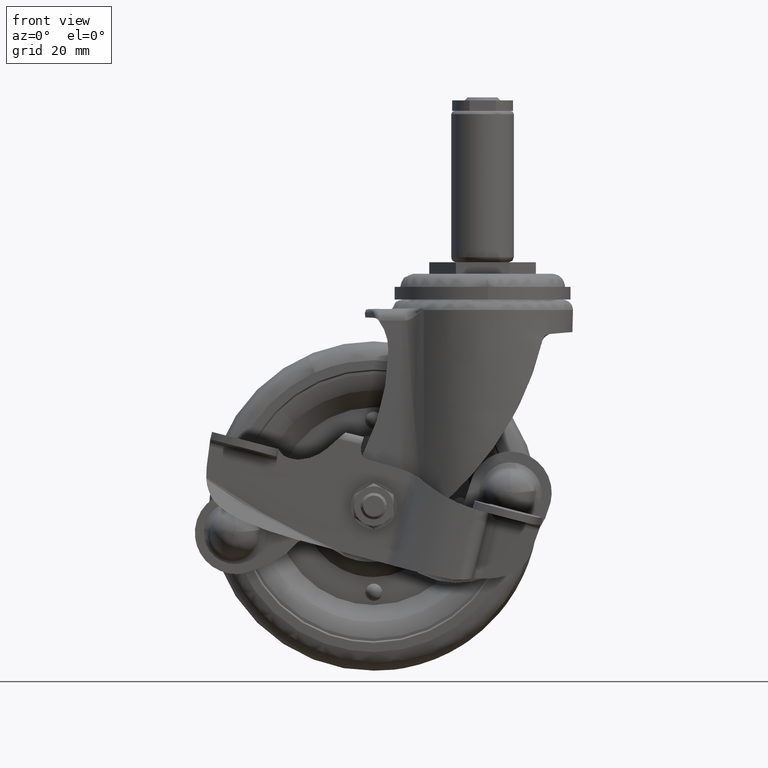
[diagram: clean part render]
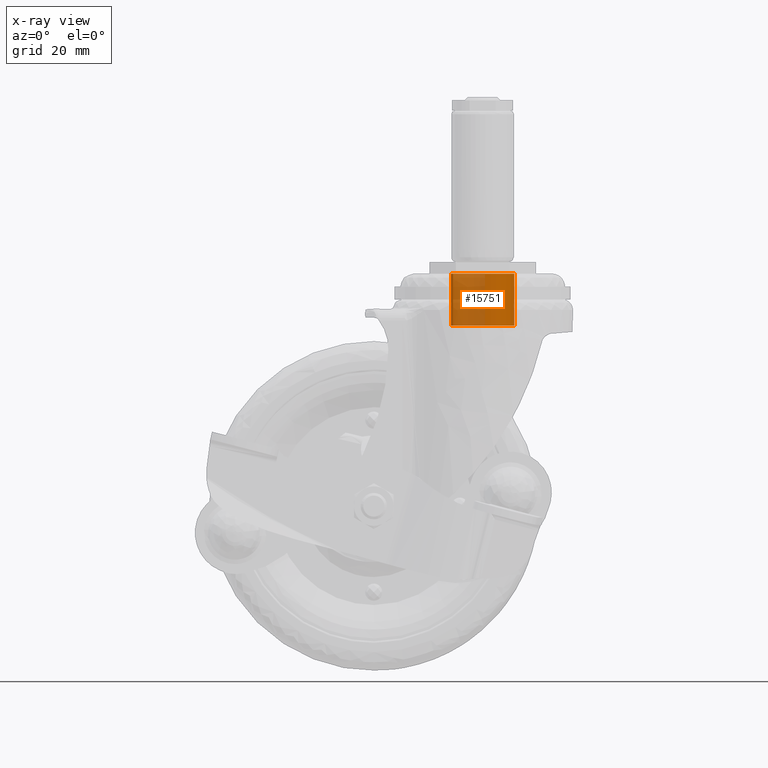
[diagram: x-ray — body ghosted, one internal face saturated and labeled with its STEP entity id]
A machine part, front view, then the same camera in x-ray: the body is ghosted and one INTERNAL B-rep face — a face not visible from any outside direction — is saturated and labeled: STEP entity #15751.
In plain terms, the highlighted face is a freeform B-spline surface patch.
Its self-contained STEP definition (entity closure, byte-faithful):
#15568=CARTESIAN_POINT('',(0.753197270787171,-9.570407194637912,-18.215751000403952));
#15569=VERTEX_POINT('',#15568);
#15570=CARTESIAN_POINT('',(-8.926698429834026,-3.531862843146474,-18.215751000000051));
#15571=VERTEX_POINT('',#15570);
#15587=CARTESIAN_POINT('',(-8.926698429834026,-3.531862843146473,-2.499304999999840));
#15588=VERTEX_POINT('',#15587);
#15589=CARTESIAN_POINT('',(-8.926698429834026,-3.531862843146474,-18.215751000000051));
#15590=CARTESIAN_POINT('',(-8.926698429834026,-3.531862843146473,-2.499304999999840));
#15591=QUASI_UNIFORM_CURVE('',1,(#15589,#15590),.UNSPECIFIED.,.F.,.U.);
#15592=EDGE_CURVE('',#15571,#15588,#15591,.T.);
#15594=CARTESIAN_POINT('',(0.753192596896211,-9.570407562468937,-2.499304999999839));
#15595=VERTEX_POINT('',#15594);
#15611=CARTESIAN_POINT('',(0.753197270787171,-9.570407194637912,-18.215751000403952));
#15612=CARTESIAN_POINT('',(0.753192596896211,-9.570407562468937,-2.499304999999839));
#15613=QUASI_UNIFORM_CURVE('',1,(#15611,#15612),.UNSPECIFIED.,.F.,.U.);
#15614=EDGE_CURVE('',#15569,#15595,#15613,.T.);
#15619=CARTESIAN_POINT('',(0.753207318987317,-9.570406403838025,-18.608662282552171));
#15620=CARTESIAN_POINT('',(10.323613722825343,-8.817199084850707,-18.608662282552171));
#15621=CARTESIAN_POINT('',(9.570406403838025,0.753207318987317,-18.608662282552171));
#15622=CARTESIAN_POINT('',(8.817199084850707,10.323613722825343,-18.608662282552171));
#15623=CARTESIAN_POINT('',(-0.753207318987317,9.570406403838025,-18.608662282552171));
#15624=CARTESIAN_POINT('',(-10.323613722825343,8.817199084850707,-18.608662282552171));
#15625=CARTESIAN_POINT('',(-9.570406403838025,-0.753207318987317,-18.608662282552171));
#15626=CARTESIAN_POINT('',(-9.457258768219480,-2.190884342570614,-18.608662282552164));
#15627=CARTESIAN_POINT('',(-8.926698429845374,-3.531862843117788,-18.608662282552167));
#15628=CARTESIAN_POINT('',(0.753207318987317,-9.570406403838025,-2.096571067936033));
#15629=CARTESIAN_POINT('',(10.323613722825343,-8.817199084850707,-2.096571067936033));
#15630=CARTESIAN_POINT('',(9.570406403838025,0.753207318987317,-2.096571067936033));
#15631=CARTESIAN_POINT('',(8.817199084850707,10.323613722825343,-2.096571067936033));
#15632=CARTESIAN_POINT('',(-0.753207318987317,9.570406403838025,-2.096571067936033));
#15633=CARTESIAN_POINT('',(-10.323613722825343,8.817199084850707,-2.096571067936033));
#15634=CARTESIAN_POINT('',(-9.570406403838025,-0.753207318987317,-2.096571067936033));
#15635=CARTESIAN_POINT('',(-9.457258768219480,-2.190884342570614,-2.096571067936032));
#15636=CARTESIAN_POINT('',(-8.926698429845374,-3.531862843117788,-2.096571067936032));
#15644=(BOUNDED_SURFACE()B_SPLINE_SURFACE(2,1,((#15619,#15628),(#15620,#15629),(#15621,#15630),(#15622,#15631),(#15623,#15632),(#15624,#15633),(#15625,#15634),(#15626,#15635),(#15627,#15636)),.UNSPECIFIED.,.F.,.F.,.U.)B_SPLINE_SURFACE_WITH_KNOTS((3,2,2,2,3),(2,2),(0.0,15.905800795126840,31.811601590253691,47.717402385380531,50.898562544405898),(0.0,16.512091214616142),.UNSPECIFIED.)GEOMETRIC_REPRESENTATION_ITEM()RATIONAL_B_SPLINE_SURFACE(((1.0,1.0),(0.707106781186548,0.707106781186548),(1.0,1.0),(0.707106781186548,0.707106781186548),(1.0,1.0),(0.707106781186548,0.707106781186548),(1.0,1.0),(0.941421356237310,0.941421356237310),(0.906274169979695,0.906274169979695)))REPRESENTATION_ITEM('')SURFACE());
#15645=CARTESIAN_POINT('',(-9.600000000000000,0.0,-18.215751000000051));
#15646=VERTEX_POINT('',#15645);
#15647=CARTESIAN_POINT('',(-8.926698429834026,-3.531862843146474,-18.215751000000051));
#15648=CARTESIAN_POINT('',(-9.600000000000000,-1.830109310782691,-18.215751000000047));
#15649=CARTESIAN_POINT('',(-9.600000000000000,0.0,-18.215751000000051));
#15657=(BOUNDED_CURVE()B_SPLINE_CURVE(2,(#15647,#15648,#15649),.UNSPECIFIED.,.F.,.U.)B_SPLINE_CURVE_WITH_KNOTS((3,3),(0.437532549938450,0.500000000000000),.UNSPECIFIED.)CURVE()GEOMETRIC_REPRESENTATION_ITEM()RATIONAL_B_SPLINE_CURVE((0.890203187500172,0.926814829921616,1.0))REPRESENTATION_ITEM(''));
#15658=EDGE_CURVE('',#15571,#15646,#15657,.T.);
#15659=ORIENTED_EDGE('',*,*,#15658,.T.);
#15660=CARTESIAN_POINT('',(0.669439215124241,9.576630468868155,-18.215751119967109));
#15661=VERTEX_POINT('',#15660);
#15662=CARTESIAN_POINT('',(-9.600000000000000,0.0,-18.215751000000051));
#15663=CARTESIAN_POINT('',(-9.600000000000000,9.600000000000000,-18.215751000000054));
#15664=CARTESIAN_POINT('',(7.888609E-031,9.600000000000000,-18.215751000000051));
#15665=CARTESIAN_POINT('',(0.335127512397203,9.600000000000000,-18.215751000000051));
#15666=CARTESIAN_POINT('',(0.669439215124241,9.576630468868155,-18.215751119967109));
#15674=(BOUNDED_CURVE()B_SPLINE_CURVE(2,(#15662,#15663,#15664,#15665,#15666),.UNSPECIFIED.,.F.,.U.)B_SPLINE_CURVE_WITH_KNOTS((3,2,3),(0.500000000000000,0.750000000000000,0.762166313464864),.UNSPECIFIED.)CURVE()GEOMETRIC_REPRESENTATION_ITEM()RATIONAL_B_SPLINE_CURVE((1.0,0.707106781186547,1.0,0.985746277152730,0.972879876387069))REPRESENTATION_ITEM(''));
#15675=EDGE_CURVE('',#15646,#15661,#15674,.T.);
#15676=ORIENTED_EDGE('',*,*,#15675,.T.);
#15677=CARTESIAN_POINT('',(9.599242024356638,-0.120633982880186,-18.215751129319191));
#15678=VERTEX_POINT('',#15677);
#15679=CARTESIAN_POINT('',(0.669439215124241,9.576630468868155,-18.215751119967109));
#15680=CARTESIAN_POINT('',(3.053661833881083,9.409965155450179,-18.215751120978862));
#15681=CARTESIAN_POINT('',(5.362086682828059,8.316932653146822,-18.215751121717869));
#15682=CARTESIAN_POINT('',(7.003923770436781,6.565443763974421,-18.215751122906848));
#15683=CARTESIAN_POINT('',(8.684142660989327,4.773009703134334,-18.215751124123610));
#15684=CARTESIAN_POINT('',(9.630032363807153,2.329454507895508,-18.215751127574240));
#15685=CARTESIAN_POINT('',(9.599242024356638,-0.120633982880186,-18.215751129319191));
#15686=B_SPLINE_CURVE_WITH_KNOTS('',3,(#15679,#15680,#15681,#15682,#15683,#15684,#15685),.UNSPECIFIED.,.F.,.U.,(4,3,4),(0.0,7.170122272485735,14.507863014686080),.UNSPECIFIED.);
#15687=EDGE_CURVE('',#15661,#15678,#15686,.T.);
#15688=ORIENTED_EDGE('',*,*,#15687,.T.);
#15689=CARTESIAN_POINT('',(9.599242024356638,-0.120633982880186,-18.215751129319184));
#15690=CARTESIAN_POINT('',(9.489126548443229,-8.882883878664895,-18.215751009783069));
#15691=CARTESIAN_POINT('',(0.753197270787171,-9.570407194637912,-18.215751000403948));
#15699=(BOUNDED_CURVE()B_SPLINE_CURVE(2,(#15689,#15690,#15691),.UNSPECIFIED.,.F.,.U.)B_SPLINE_CURVE_WITH_KNOTS((3,3),(0.002215704078272,0.236331480615487),.UNSPECIFIED.)CURVE()GEOMETRIC_REPRESENTATION_ITEM()RATIONAL_B_SPLINE_CURVE((0.994854295644012,0.725432454169650,0.969723731782326))REPRESENTATION_ITEM(''));
#15700=EDGE_CURVE('',#15678,#15569,#15699,.T.);
#15701=ORIENTED_EDGE('',*,*,#15700,.T.);
#15702=ORIENTED_EDGE('',*,*,#15614,.T.);
#15703=CARTESIAN_POINT('',(9.600000000000000,0.0,-2.499304999999840));
#15704=VERTEX_POINT('',#15703);
#15705=CARTESIAN_POINT('',(9.600000000000000,0.0,-2.499304999999840));
#15706=CARTESIAN_POINT('',(9.600000000000000,-8.874162413181239,-2.499304999999840));
#15707=CARTESIAN_POINT('',(0.753192596896211,-9.570407562468937,-2.499304999999839));
#15715=(BOUNDED_CURVE()B_SPLINE_CURVE(2,(#15705,#15706,#15707),.UNSPECIFIED.,.F.,.U.)B_SPLINE_CURVE_WITH_KNOTS((3,3),(0.500000000000000,0.736331564333938),.UNSPECIFIED.)CURVE()GEOMETRIC_REPRESENTATION_ITEM()RATIONAL_B_SPLINE_CURVE((1.0,0.723120349660058,0.969723906496693))REPRESENTATION_ITEM(''));
#15716=EDGE_CURVE('',#15704,#15595,#15715,.T.);
#15717=ORIENTED_EDGE('',*,*,#15716,.F.);
#15718=CARTESIAN_POINT('',(-9.600000000000000,0.0,-2.499304999999840));
#15719=VERTEX_POINT('',#15718);
#15720=CARTESIAN_POINT('',(-9.600000000000000,0.0,-2.499304999999840));
#15721=CARTESIAN_POINT('',(-9.600000000000000,9.600000000000000,-2.499304999999840));
#15722=CARTESIAN_POINT('',(7.888609E-031,9.600000000000000,-2.499304999999840));
#15723=CARTESIAN_POINT('',(9.600000000000000,9.600000000000000,-2.499304999999840));
#15724=CARTESIAN_POINT('',(9.600000000000000,0.0,-2.499304999999840));
#15732=(BOUNDED_CURVE()B_SPLINE_CURVE(2,(#15720,#15721,#15722,#15723,#15724),.UNSPECIFIED.,.F.,.U.)B_SPLINE_CURVE_WITH_KNOTS((3,2,3),(0.0,0.250000000000000,0.500000000000000),.UNSPECIFIED.)CURVE()GEOMETRIC_REPRESENTATION_ITEM()RATIONAL_B_SPLINE_CURVE((1.0,0.707106781186547,1.0,0.707106781186547,1.0))REPRESENTATION_ITEM(''));
#15733=EDGE_CURVE('',#15719,#15704,#15732,.T.);
#15734=ORIENTED_EDGE('',*,*,#15733,.F.);
#15735=CARTESIAN_POINT('',(-8.926698429834026,-3.531862843146473,-2.499304999999840));
#15736=CARTESIAN_POINT('',(-9.600000000000000,-1.830109310782688,-2.499304999999840));
#15737=CARTESIAN_POINT('',(-9.600000000000000,0.0,-2.499304999999840));
#15745=(BOUNDED_CURVE()B_SPLINE_CURVE(2,(#15735,#15736,#15737),.UNSPECIFIED.,.F.,.U.)B_SPLINE_CURVE_WITH_KNOTS((3,3),(0.937532549938450,1.0),.UNSPECIFIED.)CURVE()GEOMETRIC_REPRESENTATION_ITEM()RATIONAL_B_SPLINE_CURVE((0.890203187500172,0.926814829921616,1.0))REPRESENTATION_ITEM(''));
#15746=EDGE_CURVE('',#15588,#15719,#15745,.T.);
#15747=ORIENTED_EDGE('',*,*,#15746,.F.);
#15748=ORIENTED_EDGE('',*,*,#15592,.F.);
#15749=EDGE_LOOP('',(#15659,#15676,#15688,#15701,#15702,#15717,#15734,#15747,#15748));
#15750=FACE_OUTER_BOUND('',#15749,.T.);
#15751=ADVANCED_FACE('',(#15750),#15644,.F.);